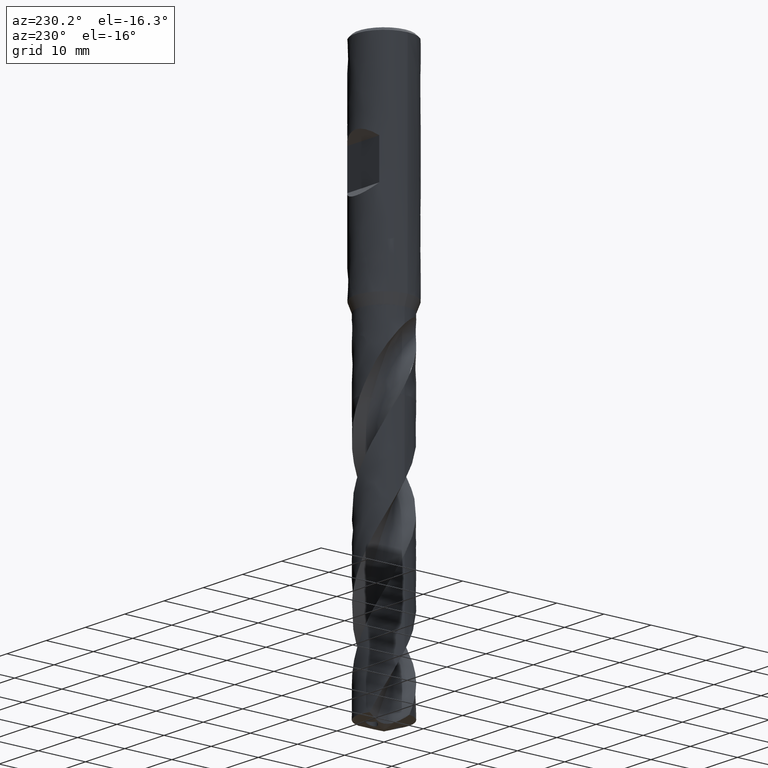
[diagram: clean part render]
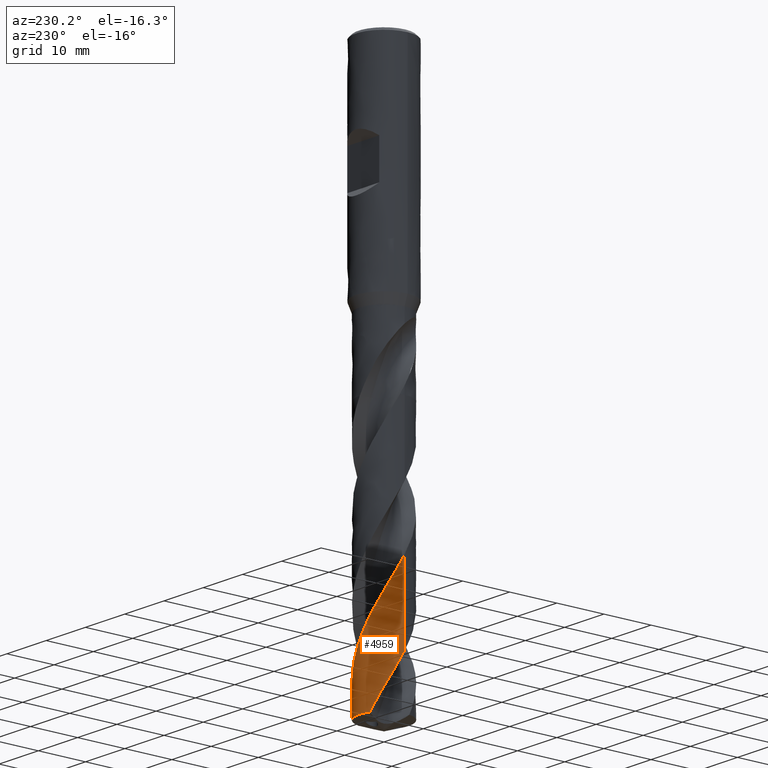
[diagram: same view with one face highlighted and labeled with its STEP entity id]
A machine part, auxiliary view. The second image highlights one B-rep face of the part: STEP entity #4959.
In plain terms, the highlighted face is a freeform B-spline surface patch.
Its self-contained STEP definition (entity closure, byte-faithful):
#3120 = VERTEX_POINT('', #3121);
#3121 = CARTESIAN_POINT('', (-5.25, 6.77767519990545E-15, -105.437835947872));
#3302 = EDGE_CURVE('', #3303, #3120, #3305, .T.);
#3303 = VERTEX_POINT('', #3304);
#3304 = CARTESIAN_POINT('', (-2.12042468621419, 4.80273871349395, -116.089156270102));
#3305 = B_SPLINE_CURVE_WITH_KNOTS('', 3, (#3306, #3307, #3308, #3309, #3310, #3311, #3312, #3313, #3314, #3315, #3316, #3317, #3318, #3319, #3320, #3321, #3322, #3323, #3324, #3325, #3326, #3327, #3328, #3329, #3330, #3331, #3332, #3333, #3334, #3335, #3336, #3337, #3338, #3339, #3340, #3341, #3342, #3343, #3344, #3345), .UNSPECIFIED., .F., .U., (4, 3, 3, 3, 3, 3, 3, 3, 3, 3, 3, 3, 3, 4), (0., 0.998477348713165, 1.99667584010453, 2.99460009475844, 3.99225357836186, 4.98963851049831, 5.98675586552884, 6.98360539849684, 7.98018563728221, 8.97649384640646, 9.9725259787005, 10.9682766900227, 11.9637394164547, 12.2554151532443), .UNSPECIFIED.);
#3306 = CARTESIAN_POINT('', (-2.12042468621419, 4.80273871349395, -116.089156270102));
#3307 = CARTESIAN_POINT('', (-2.27094122891035, 4.73628517274233, -115.799843810878));
#3308 = CARTESIAN_POINT('', (-2.41838021777014, 4.66272618789985, -115.510459029823));
#3309 = CARTESIAN_POINT('', (-2.56201089763471, 4.58242295738849, -115.221158803869));
#3310 = CARTESIAN_POINT('', (-2.70560146395362, 4.50214215416987, -114.931939374426));
#3311 = CARTESIAN_POINT('', (-2.84546193706465, 4.41507834604139, -114.642647590356));
#3312 = CARTESIAN_POINT('', (-2.98089941282537, 4.32165925202548, -114.353440571939));
#3313 = CARTESIAN_POINT('', (-3.11629967962234, 4.22826582319318, -114.06431300785));
#3314 = CARTESIAN_POINT('', (-3.24735042408458, 4.12847161583614, -113.775112867013));
#3315 = CARTESIAN_POINT('', (-3.37340273384849, 4.02276695761308, -113.485997572456));
#3316 = CARTESIAN_POINT('', (-3.49942084130078, 3.91709098068644, -113.196960724786));
#3317 = CARTESIAN_POINT('', (-3.62050931243064, 3.80545231814549, -112.907851422361));
#3318 = CARTESIAN_POINT('', (-3.73606803016618, 3.68840015100995, -112.618826773342));
#3319 = CARTESIAN_POINT('', (-3.85159564144675, 3.57137949234074, -112.329879924877));
#3320 = CARTESIAN_POINT('', (-3.96165756794125, 3.44888631343458, -112.040860903106));
#3321 = CARTESIAN_POINT('', (-4.06570744933345, 3.32152418874746, -111.751926211283));
#3322 = CARTESIAN_POINT('', (-4.16972941636156, 3.19419623260213, -111.463069034476));
#3323 = CARTESIAN_POINT('', (-4.26779827275813, 3.06193368555216, -111.174140053859));
#3324 = CARTESIAN_POINT('', (-4.35942615891025, 2.92538947236244, -110.885295017625));
#3325 = CARTESIAN_POINT('', (-4.45102943414839, 2.78888193444733, -110.596527564107));
#3326 = CARTESIAN_POINT('', (-4.53624491953956, 2.64802086842662, -110.307688652803));
#3327 = CARTESIAN_POINT('', (-4.6146477593695, 2.50350275752717, -110.018933357645));
#3328 = CARTESIAN_POINT('', (-4.69302941904338, 2.35902368751129, -109.730256068363));
#3329 = CARTESIAN_POINT('', (-4.76464507585112, 2.2108103126098, -109.441507534747));
#3330 = CARTESIAN_POINT('', (-4.82913696625225, 2.05959611603249, -109.152842458198));
#3331 = CARTESIAN_POINT('', (-4.89361125274513, 1.90842319535556, -108.864256176572));
#3332 = CARTESIAN_POINT('', (-4.95100106530432, 1.75416810478825, -108.575598602808));
#3333 = CARTESIAN_POINT('', (-5.00101925638169, 1.59759394005481, -108.287024627878));
#3334 = CARTESIAN_POINT('', (-5.05102358742707, 1.44106316199498, -107.998530616746));
#3335 = CARTESIAN_POINT('', (-5.09368757018592, 1.28212963379191, -107.709964937572));
#3336 = CARTESIAN_POINT('', (-5.12879735844588, 1.12157819878926, -107.421483306355));
#3337 = CARTESIAN_POINT('', (-5.1638972267139, 0.961072126320014, -107.133083183334));
#3338 = CARTESIAN_POINT('', (-5.19146590735607, 0.798863580370789, -106.844610940584));
#3339 = CARTESIAN_POINT('', (-5.2113644272787, 0.635752157759666, -106.556223104971));
#3340 = CARTESIAN_POINT('', (-5.23125719227391, 0.472687909229942, -106.267918675112));
#3341 = CARTESIAN_POINT('', (-5.24349471656205, 0.308635484331246, -105.979541954395));
#3342 = CARTESIAN_POINT('', (-5.24801369580563, 0.144403076978391, -105.691249722925));
#3343 = CARTESIAN_POINT('', (-5.24933778013888, 0.0962821306612403, -105.606778605331));
#3344 = CARTESIAN_POINT('', (-5.25, 0.0481409190813675, -105.522306062654));
#3345 = CARTESIAN_POINT('', (-5.25, 6.43506731340003E-15, -105.437835947872));
#3529 = VERTEX_POINT('', #3530);
#3530 = CARTESIAN_POINT('', (-5.25, 5.77693583863282E-15, -89.0945219087649));
#3621 = EDGE_CURVE('', #3529, #3120, #3622, .T.);
#3622 = LINE('', #3623, #3624);
#3623 = CARTESIAN_POINT('', (-5.25, 5.77693583863282E-15, -89.0945219087649));
#3624 = VECTOR('', #3625, 16.3433140391073);
#3625 = DIRECTION('', (0., 1.00073936127264E-15, -16.3433140391073));
#3717 = VERTEX_POINT('', #3718);
#3718 = CARTESIAN_POINT('', (5.12901679958836, 1.12057425882464, -116.089156270102));
#3842 = EDGE_CURVE('', #3843, #3717, #3845, .T.);
#3843 = VERTEX_POINT('', #3844);
#3844 = CARTESIAN_POINT('', (4.84328830628846, 2.02609436655096, -114.411148209227));
#3845 = B_SPLINE_CURVE_WITH_KNOTS('', 3, (#3846, #3847, #3848, #3849, #3850, #3851, #3852), .UNSPECIFIED., .F., .U., (4, 3, 4), (0., 0.996303851416958, 1.92851427668855), .UNSPECIFIED.);
#3846 = CARTESIAN_POINT('', (4.8432883062885, 2.02609436655086, -114.411148209227));
#3847 = CARTESIAN_POINT('', (4.90648284031596, 1.87503064872531, -114.700072882336));
#3848 = CARTESIAN_POINT('', (4.96261334637963, 1.72098062366997, -114.989082592419));
#3849 = CARTESIAN_POINT('', (5.0114092355484, 1.56469724670905, -115.278021565199));
#3850 = CARTESIAN_POINT('', (5.05706602642482, 1.41846776752715, -115.548372746026));
#3851 = CARTESIAN_POINT('', (5.09632360177884, 1.27021535532207, -115.818793437661));
#3852 = CARTESIAN_POINT('', (5.12901679958836, 1.12057425882466, -116.089156270102));
#4387 = EDGE_CURVE('', #3303, #3717, #4388, .T.);
#4388 = CIRCLE('', #4389, 5.25);
#4389 = AXIS2_PLACEMENT_3D('', #4390, #4391, #4392);
#4390 = CARTESIAN_POINT('', (4.35264619442618E-31, 7.10841068209489E-15, -116.089156270102));
#4391 = DIRECTION('', (3.74939945665464E-33, 6.12323399573677E-17, -1.));
#4392 = DIRECTION('', (-1., 6.12323399573677E-17, 0.));
#4959 = ADVANCED_FACE('', (#4960), #5066, .T.);
#4960 = FACE_OUTER_BOUND('', #4961, .T.);
#4961 = EDGE_LOOP('', (#4962, #4963, #4964, #5064, #5065));
#4962 = ORIENTED_EDGE('', *, *, #3302, .T.);
#4963 = ORIENTED_EDGE('', *, *, #3621, .F.);
#4964 = ORIENTED_EDGE('', *, *, #4965, .F.);
#4965 = EDGE_CURVE('', #3843, #3529, #4966, .T.);
#4966 = B_SPLINE_CURVE_WITH_KNOTS('', 3, (#4967, #4968, #4969, #4970, #4971, #4972, #4973, #4974, #4975, #4976, #4977, #4978, #4979, #4980, #4981, #4982, #4983, #4984, #4985, #4986, #4987, #4988, #4989, #4990, #4991, #4992, #4993, #4994, #4995, #4996, #4997, #4998, #4999, #5000, #5001, #5002, #5003, #5004, #5005, #5006, #5007, #5008, #5009, #5010, #5011, #5012, #5013, #5014, #5015, #5016, #5017, #5018, #5019, #5020, #5021, #5022, #5023, #5024, #5025, #5026, #5027, #5028, #5029, #5030, #5031, #5032, #5033, #5034, #5035, #5036, #5037, #5038, #5039, #5040, #5041, #5042, #5043, #5044, #5045, #5046, #5047, #5048, #5049, #5050, #5051, #5052, #5053, #5054, #5055, #5056, #5057, #5058, #5059, #5060, #5061, #5062, #5063), .UNSPECIFIED., .F., .U., (4, 3, 3, 3, 3, 3, 3, 3, 3, 3, 3, 3, 3, 3, 3, 3, 3, 3, 3, 3, 3, 3, 3, 3, 3, 3, 3, 3, 3, 3, 3, 3, 4), (0., 0.998529960602108, 1.99678297968703, 2.99476382568635, 3.99247593504606, 4.98992146828786, 5.98710135380925, 6.98401529290259, 7.98066176758689, 8.97703822421552, 9.9731409769289, 10.9689650307798, 11.9645039835017, 12.4074239595603, 12.4658017423789, 12.5241860220958, 13.5239840959163, 14.5234637152093, 15.5226367088258, 16.5215129415379, 17.5201005203147, 18.5184059553981, 19.516434283869, 20.5141891614032, 21.5116729265338, 22.5088866624543, 23.5058303823025, 24.5025029485687, 25.4989020069421, 26.4950239391134, 27.4908637918082, 28.4864151795764, 29.1294786532812), .UNSPECIFIED.);
#4967 = CARTESIAN_POINT('', (4.84328830628846, 2.02609436655096, -114.411148209227));
#4968 = CARTESIAN_POINT('', (4.77995257243279, 2.17749561627434, -114.121577972149));
#4969 = CARTESIAN_POINT('', (4.70948623566247, 2.32598062145875, -113.831940415196));
#4970 = CARTESIAN_POINT('', (4.63223021521453, 2.47081833270955, -113.542392110925));
#4971 = CARTESIAN_POINT('', (4.55499562166449, 2.61561587333245, -113.252924112653));
#4972 = CARTESIAN_POINT('', (4.47093515692943, 2.75684293882174, -112.963389128314));
#4973 = CARTESIAN_POINT('', (4.38045736949768, 2.89380255615575, -112.673942992676));
#4974 = CARTESIAN_POINT('', (4.29000425078028, 3.03072483153242, -112.384575774353));
#4975 = CARTESIAN_POINT('', (4.19308963589958, 3.16345403017029, -112.095142044523));
#4976 = CARTESIAN_POINT('', (4.09018659176438, 3.29133311054213, -111.805796632374));
#4977 = CARTESIAN_POINT('', (3.98731125739776, 3.41917775558941, -111.516529135263));
#4978 = CARTESIAN_POINT('', (3.87839533670834, 3.54224361271126, -111.227195629888));
#4979 = CARTESIAN_POINT('', (3.76397251950554, 3.65991951720351, -110.937949933327));
#4980 = CARTESIAN_POINT('', (3.64958027463931, 3.77756398017521, -110.648781519576));
#4981 = CARTESIAN_POINT('', (3.52962140805503, 3.88988575078259, -110.359547462464));
#4982 = CARTESIAN_POINT('', (3.4046853613238, 3.99632551106482, -110.070400893189));
#4983 = CARTESIAN_POINT('', (3.27978258856584, 4.10273692345362, -109.781331331756));
#4984 = CARTESIAN_POINT('', (3.14983633905448, 4.20332818297718, -109.492196187952));
#4985 = CARTESIAN_POINT('', (3.01548584828377, 4.2975975961926, -109.203148568972));
#4986 = CARTESIAN_POINT('', (2.88117118859393, 4.39184186789234, -108.914178038572));
#4987 = CARTESIAN_POINT('', (2.74238114462548, 4.47981928608497, -108.625141504007));
#4988 = CARTESIAN_POINT('', (2.59979761053677, 4.56109113965588, -108.336193066359));
#4989 = CARTESIAN_POINT('', (2.45725233052314, 4.64234118860813, -108.047322151374));
#4990 = CARTESIAN_POINT('', (2.31083963847856, 4.7169326500257, -107.758384447302));
#4991 = CARTESIAN_POINT('', (2.16127712096861, 4.78449382969378, -107.469535571259));
#4992 = CARTESIAN_POINT('', (2.01175512392524, 4.85203670524015, -107.180764952064));
#4993 = CARTESIAN_POINT('', (1.85900730274893, 4.91258825324612, -106.891927003987));
#4994 = CARTESIAN_POINT('', (1.70378139162465, 4.96584624908525, -106.603178254133));
#4995 = CARTESIAN_POINT('', (1.54859812094951, 5.0190896149902, -106.314508823359));
#4996 = CARTESIAN_POINT('', (1.39085817993939, 5.06507085582384, -106.025771971207));
#4997 = CARTESIAN_POINT('', (1.23133419533964, 5.10355915997732, -105.73712427495));
#4998 = CARTESIAN_POINT('', (1.07185484383917, 5.14203669551626, -105.448557339221));
#4999 = CARTESIAN_POINT('', (0.910509769677986, 5.17304539232707, -105.159923217806));
#5000 = CARTESIAN_POINT('', (0.748090737214186, 5.19642764299638, -104.871377919908));
#5001 = CARTESIAN_POINT('', (0.585718204781527, 5.21980319940476, -104.582915231573));
#5002 = CARTESIAN_POINT('', (0.42218678767222, 5.23556893025422, -104.294385790608));
#5003 = CARTESIAN_POINT('', (0.258301053105686, 5.24364191816762, -104.005944685078));
#5004 = CARTESIAN_POINT('', (0.185387516742192, 5.24723362857086, -103.877615876641));
#5005 = CARTESIAN_POINT('', (0.112391121023446, 5.24930458791315, -103.749282549177));
#5006 = CARTESIAN_POINT('', (0.0393834446734738, 5.24985227832991, -103.620958169293));
#5007 = CARTESIAN_POINT('', (0.0297608796404555, 5.24992446507679, -103.604044746589));
#5008 = CARTESIAN_POINT('', (0.0201380434139992, 5.24997019616336, -103.587131344568));
#5009 = CARTESIAN_POINT('', (0.0105151008013767, 5.24998946976612, -103.570217993619));
#5010 = CARTESIAN_POINT('', (0.00089108724572226, 5.25000874551386, -103.553302760373));
#5011 = CARTESIAN_POINT('', (-0.00873305051266698, 5.25000155792388, -103.536387546935));
#5012 = CARTESIAN_POINT('', (-0.0183571474515162, 5.24996790610548, -103.519472383623));
#5013 = CARTESIAN_POINT('', (-0.183164414551161, 5.24939163757254, -103.229809690507));
#5014 = CARTESIAN_POINT('', (-0.348007384054705, 5.24104621171758, -102.940078868984));
#5015 = CARTESIAN_POINT('', (-0.512068377568665, 5.22496755747776, -102.650438211544));
#5016 = CARTESIAN_POINT('', (-0.676077114564504, 5.20889402459231, -102.360889810112));
#5017 = CARTESIAN_POINT('', (-0.839390248010196, 5.18508379046016, -102.071272977662));
#5018 = CARTESIAN_POINT('', (-1.00119810613074, 5.15364942077754, -101.781746470248));
#5019 = CARTESIAN_POINT('', (-1.16295632397547, 5.12222469469814, -101.492308785316));
#5020 = CARTESIAN_POINT('', (-1.32329470539529, 5.08316407046205, -101.202802725155));
#5021 = CARTESIAN_POINT('', (-1.48141753545512, 5.03665584347852, -100.913386824858));
#5022 = CARTESIAN_POINT('', (-1.63949340200177, 4.99016142974214, -100.624056882973));
#5023 = CARTESIAN_POINT('', (-1.79543842427798, 4.93619926029982, -100.334658872165));
#5024 = CARTESIAN_POINT('', (-1.9484771074097, 4.87503199598736, -100.045350641024));
#5025 = CARTESIAN_POINT('', (-2.10147156562478, 4.81388240771019, -99.7561260137934));
#5026 = CARTESIAN_POINT('', (-2.25164341996578, 4.74549902786915, -99.4668337553503));
#5027 = CARTESIAN_POINT('', (-2.39824395274952, 4.67021690535895, -99.1776308037655));
#5028 = CARTESIAN_POINT('', (-2.54480306461369, 4.59495605326763, -98.8885095643817));
#5029 = CARTESIAN_POINT('', (-2.68787292052975, 4.51275918586568, -98.5993211322946));
#5030 = CARTESIAN_POINT('', (-2.8267383712145, 4.42403098776485, -98.3102215756386));
#5031 = CARTESIAN_POINT('', (-2.96556527604617, 4.33532741856972, -98.0212022663658));
#5032 = CARTESIAN_POINT('', (-3.10026704354511, 4.24004694017309, -97.7321160613186));
#5033 = CARTESIAN_POINT('', (-3.23016901508984, 4.13866018585165, -97.4431184875181));
#5034 = CARTESIAN_POINT('', (-3.36003539464307, 4.03730121060434, -97.1542000964973));
#5035 = CARTESIAN_POINT('', (-3.4851769637309, 3.92978282706468, -96.8652148105798));
#5036 = CARTESIAN_POINT('', (-3.60496646044887, 3.81663684662803, -96.5763182570203));
#5037 = CARTESIAN_POINT('', (-3.72472340767086, 3.70352161049483, -96.2875002031412));
#5038 = CARTESIAN_POINT('', (-3.83919729077176, 3.58471946407188, -95.9986148150234));
#5039 = CARTESIAN_POINT('', (-3.94781486553979, 3.4608175027619, -95.7098187317138));
#5040 = CARTESIAN_POINT('', (-4.05640303640276, 3.33694908299909, -95.421100828502));
#5041 = CARTESIAN_POINT('', (-4.15919659479739, 3.20791694083959, -95.1323149017305));
#5042 = CARTESIAN_POINT('', (-4.25568148729768, 3.07435766928181, -94.843618884437));
#5043 = CARTESIAN_POINT('', (-4.35214025453438, 2.94083456163614, -94.5550010375115));
#5044 = CARTESIAN_POINT('', (-4.44234474743079, 2.80271625651994, -94.266314777629));
#5045 = CARTESIAN_POINT('', (-4.525843705442, 2.66068388838492, -93.9777186826639));
#5046 = CARTESIAN_POINT('', (-4.60931995300215, 2.51869015090137, -93.6892010814627));
#5047 = CARTESIAN_POINT('', (-4.68613817471189, 2.3727098439817, -93.4006150451176));
#5048 = CARTESIAN_POINT('', (-4.75591313652845, 2.22346356790397, -93.1121190912905));
#5049 = CARTESIAN_POINT('', (-4.82566895062948, 2.07425824814014, -92.8237023068146));
#5050 = CARTESIAN_POINT('', (-4.88842225499759, 1.92170976035698, -92.5352173310701));
#5051 = CARTESIAN_POINT('', (-4.94385692603181, 1.76657258410961, -92.2468221223591));
#5052 = CARTESIAN_POINT('', (-4.99927617914715, 1.61147855581194, -91.958507124351));
#5053 = CARTESIAN_POINT('', (-5.04741058276428, 1.45371396115995, -91.6701243314446));
#5054 = CARTESIAN_POINT('', (-5.08801593945908, 1.29406097221549, -91.3818308742961));
#5055 = CARTESIAN_POINT('', (-5.12860979762405, 1.13445319343064, -91.0936190554138));
#5056 = CARTESIAN_POINT('', (-5.16170099736854, 0.972870874059828, -90.8053398640645));
#5057 = CARTESIAN_POINT('', (-5.18711966365231, 0.810117025468473, -90.5171495916994));
#5058 = CARTESIAN_POINT('', (-5.21253096691112, 0.647410321783848, -90.2290427994095));
#5059 = CARTESIAN_POINT('', (-5.23028822482392, 0.483442586968961, -89.94086894335));
#5060 = CARTESIAN_POINT('', (-5.24029768092495, 0.319030116591783, -89.6527837478022));
#5061 = CARTESIAN_POINT('', (-5.24676315893976, 0.212830019218464, -89.46669886173));
#5062 = CARTESIAN_POINT('', (-5.25, 0.106413032601822, -89.2805974697746));
#5063 = CARTESIAN_POINT('', (-5.25, 5.60693293798709E-15, -89.0945219087649));
#5064 = ORIENTED_EDGE('', *, *, #3842, .T.);
#5065 = ORIENTED_EDGE('', *, *, #4387, .F.);
#5066 = (
   BOUNDED_SURFACE ()
   B_SPLINE_SURFACE (2, 1, ((#5067, #5068), (#5069, #5070), (#5071, #5072), (#5073, #5074), (#5075, #5076)), .UNSPECIFIED., .F., .F., .U.)
   B_SPLINE_SURFACE_WITH_KNOTS ((3, 2, 3), (2, 2), (0., 8.24668071567321, 15.2881079377582), (0.609278274353176, 1.), .UNSPECIFIED.)
   GEOMETRIC_REPRESENTATION_ITEM ()
   RATIONAL_B_SPLINE_SURFACE (((1., 1.), (0.707106781186548, 0.707106781186548), (1., 1.), (0.749913164432635, 0.749913164432635), (0.926899550822881, 0.926899550822881)))
   REPRESENTATION_ITEM ('')
   SURFACE ()
);
#5067 = CARTESIAN_POINT('', (-5.25, 5.77693583863282E-15, -89.0945219087649));
#5068 = CARTESIAN_POINT('', (-5.25, 7.42988046687107E-15, -116.089156270102));
#5069 = CARTESIAN_POINT('', (-5.25, 5.25, -89.0945219087649));
#5070 = CARTESIAN_POINT('', (-5.25, 5.25000000000001, -116.089156270102));
#5071 = CARTESIAN_POINT('', (3.45126646034193E-31, 5.25000000000001, -89.0945219087649));
#5072 = CARTESIAN_POINT('', (4.43734259186819E-31, 5.25000000000001, -116.089156270102));
#5073 = CARTESIAN_POINT('', (4.22683059702799, 5.25000000000001, -89.0945219087649));
#5074 = CARTESIAN_POINT('', (4.22683059702799, 5.25000000000001, -116.089156270102));
#5075 = CARTESIAN_POINT('', (5.12901679958836, 1.12057425882464, -89.0945219087649));
#5076 = CARTESIAN_POINT('', (5.12901679958836, 1.12057425882464, -116.089156270102));